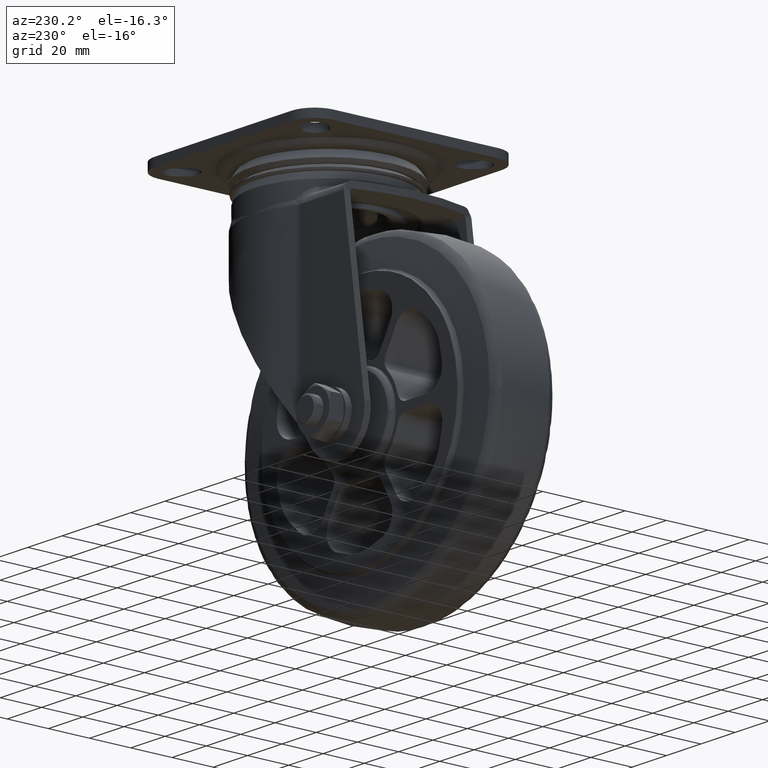
[diagram: clean part render]
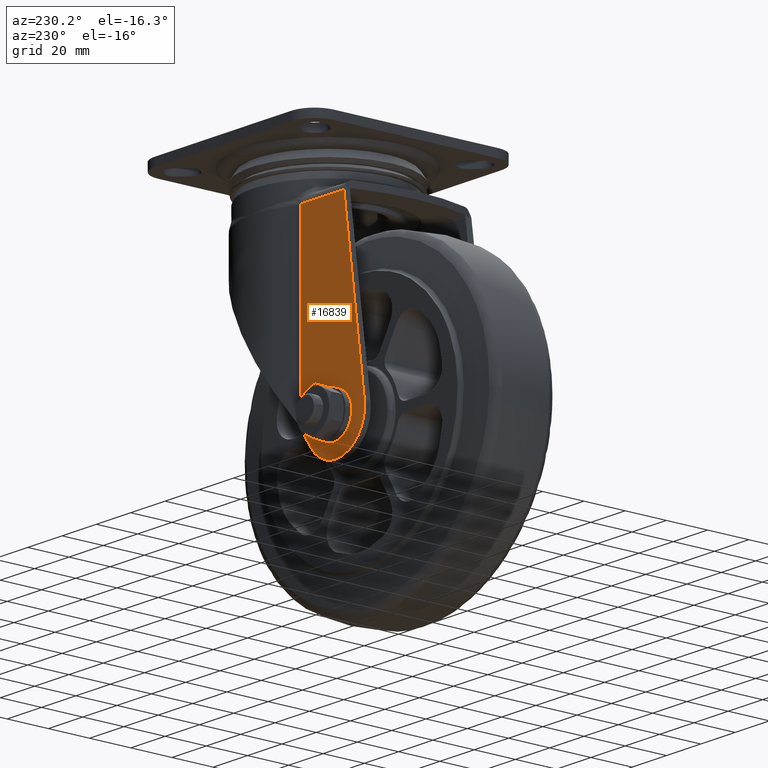
[diagram: same view with one face highlighted and labeled with its STEP entity id]
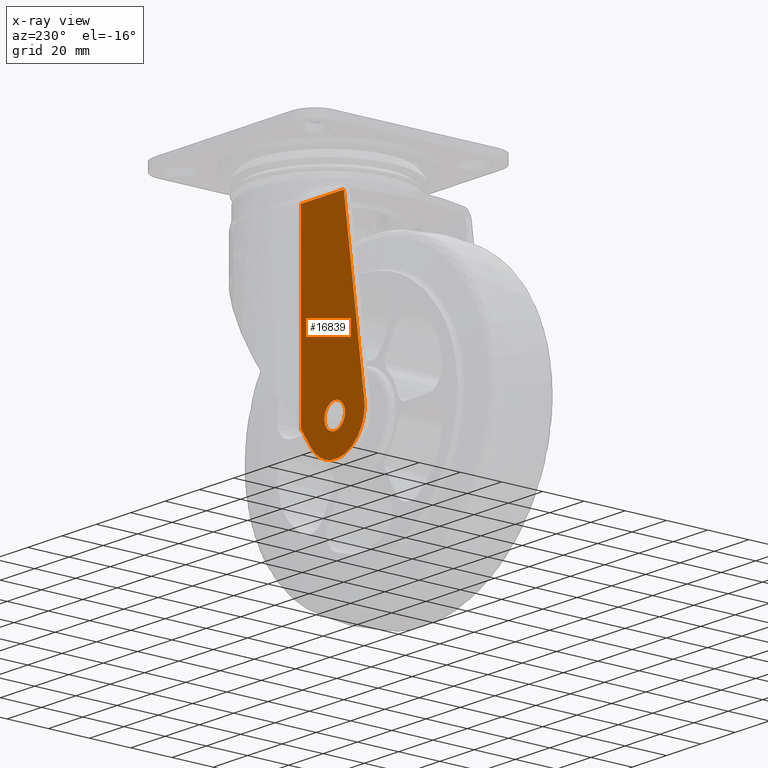
[diagram: x-ray of the same camera — body ghosted, the highlighted face saturated]
A machine part, auxiliary view. The second image highlights one B-rep face of the part: STEP entity #16839.
The next image is the same camera in x-ray: the body ghosted, the highlighted face saturated — about 0% of this face is hidden behind the body in this view.
In plain terms, the highlighted face is a freeform B-spline surface patch.
Its self-contained STEP definition (entity closure, byte-faithful):
#11979=CARTESIAN_POINT('',(-5.953597282907007,31.0,-0.744768012848497));
#11980=VERTEX_POINT('',#11979);
#11981=CARTESIAN_POINT('',(0.0,31.0,-6.0));
#11982=VERTEX_POINT('',#11981);
#11983=CARTESIAN_POINT('',(-5.953597282907007,31.000000000000004,-0.744768012848497));
#11984=CARTESIAN_POINT('',(-5.296191600238813,30.999999999999996,-6.0));
#11985=CARTESIAN_POINT('',(0.0,31.0,-6.0));
#11993=(BOUNDED_CURVE()B_SPLINE_CURVE(2,(#11983,#11984,#11985),.UNSPECIFIED.,.F.,.U.)B_SPLINE_CURVE_WITH_KNOTS((3,3),(0.271473928991636,0.500000000000000),.UNSPECIFIED.)CURVE()GEOMETRIC_REPRESENTATION_ITEM()RATIONAL_B_SPLINE_CURVE((0.954005430234093,0.732265053918275,1.0))REPRESENTATION_ITEM(''));
#11994=EDGE_CURVE('',#11980,#11982,#11993,.T.);
#12035=CARTESIAN_POINT('',(5.999771538377074,31.0,0.052359213901547));
#12036=VERTEX_POINT('',#12035);
#12042=CARTESIAN_POINT('',(0.0,31.0,-6.0));
#12043=CARTESIAN_POINT('',(6.0,31.000000000000007,-6.0));
#12044=CARTESIAN_POINT('',(6.0,31.0,0.0));
#12045=CARTESIAN_POINT('',(5.999999999999999,31.000000000000004,0.026180105835554));
#12046=CARTESIAN_POINT('',(5.999771538377074,30.999999999999996,0.052359213901547));
#12054=(BOUNDED_CURVE()B_SPLINE_CURVE(2,(#12042,#12043,#12044,#12045,#12046),.UNSPECIFIED.,.F.,.U.)B_SPLINE_CURVE_WITH_KNOTS((3,2,3),(0.500000000000000,0.750000000000000,0.751539894388495),.UNSPECIFIED.)CURVE()GEOMETRIC_REPRESENTATION_ITEM()RATIONAL_B_SPLINE_CURVE((1.0,0.707106781186548,1.0,0.998195901503684,0.996414027976574))REPRESENTATION_ITEM(''));
#12055=EDGE_CURVE('',#11982,#12036,#12054,.T.);
#12082=CARTESIAN_POINT('',(0.0,31.0,6.0));
#12083=VERTEX_POINT('',#12082);
#12084=CARTESIAN_POINT('',(0.0,31.0,6.0));
#12085=CARTESIAN_POINT('',(-6.0,31.000000000000007,6.0));
#12086=CARTESIAN_POINT('',(-6.0,31.0,0.0));
#12087=CARTESIAN_POINT('',(-6.000000000000001,31.000000000000004,-0.373829565574812));
#12088=CARTESIAN_POINT('',(-5.953597282907007,31.000000000000004,-0.744768012848497));
#12096=(BOUNDED_CURVE()B_SPLINE_CURVE(2,(#12084,#12085,#12086,#12087,#12088),.UNSPECIFIED.,.F.,.U.)B_SPLINE_CURVE_WITH_KNOTS((3,2,3),(0.0,0.250000000000000,0.271473928991636),.UNSPECIFIED.)CURVE()GEOMETRIC_REPRESENTATION_ITEM()RATIONAL_B_SPLINE_CURVE((1.0,0.707106781186548,1.0,0.974841727268273,0.954005430234093))REPRESENTATION_ITEM(''));
#12097=EDGE_CURVE('',#12083,#11980,#12096,.T.);
#12099=CARTESIAN_POINT('',(5.999771538377074,30.999999999999996,0.052359213901547));
#12100=CARTESIAN_POINT('',(5.947867261762962,31.000000000000011,6.000000000000001));
#12101=CARTESIAN_POINT('',(0.0,31.0,6.0));
#12109=(BOUNDED_CURVE()B_SPLINE_CURVE(2,(#12099,#12100,#12101),.UNSPECIFIED.,.F.,.U.)B_SPLINE_CURVE_WITH_KNOTS((3,3),(0.751539894388496,1.0),.UNSPECIFIED.)CURVE()GEOMETRIC_REPRESENTATION_ITEM()RATIONAL_B_SPLINE_CURVE((0.996414027976572,0.708910879682865,1.0))REPRESENTATION_ITEM(''));
#12110=EDGE_CURVE('',#12036,#12083,#12109,.T.);
#14707=CARTESIAN_POINT('',(19.713605374355399,31.0,86.649990000000003));
#14708=VERTEX_POINT('',#14707);
#14766=CARTESIAN_POINT('',(19.713605374355449,31.0,-0.793101679566810));
#14767=VERTEX_POINT('',#14766);
#14783=CARTESIAN_POINT('',(19.713605374355399,31.0,86.649990000000003));
#14784=CARTESIAN_POINT('',(19.713605374355449,31.0,-0.793101679566810));
#14785=QUASI_UNIFORM_CURVE('',1,(#14783,#14784),.UNSPECIFIED.,.F.,.U.);
#14786=EDGE_CURVE('',#14708,#14767,#14785,.T.);
#16580=CARTESIAN_POINT('',(-5.291698815796610,31.0,86.649990000000003));
#16581=VERTEX_POINT('',#16580);
#16582=CARTESIAN_POINT('',(-5.291698815796610,31.0,86.649990000000003));
#16583=CARTESIAN_POINT('',(19.713605374355399,31.0,86.649990000000003));
#16584=QUASI_UNIFORM_CURVE('',1,(#16582,#16583),.UNSPECIFIED.,.F.,.U.);
#16585=EDGE_CURVE('',#16581,#14708,#16584,.T.);
#16795=CARTESIAN_POINT('',(-19.241105476619239,31.0,-22.175159766853639));
#16796=CARTESIAN_POINT('',(-19.241105476619239,31.0,91.827199195738714));
#16797=CARTESIAN_POINT('',(21.566825794613791,31.0,-22.175159766853639));
#16798=CARTESIAN_POINT('',(21.566825794613791,31.0,91.827199195738714));
#16799=B_SPLINE_SURFACE_WITH_KNOTS('',1,1,((#16795,#16797),(#16796,#16798)),.UNSPECIFIED.,.F.,.F.,.U.,(2,2),(2,2),(0.0,114.002358962592400),(0.0,40.807931271233031),.UNSPECIFIED.);
#16800=ORIENTED_EDGE('',*,*,#16585,.T.);
#16801=ORIENTED_EDGE('',*,*,#14786,.T.);
#16802=CARTESIAN_POINT('',(13.587418191632301,31.0,-9.661906722576230));
#16803=VERTEX_POINT('',#16802);
#16804=CARTESIAN_POINT('',(19.713605374355449,31.0,-0.793101679566810));
#16805=CARTESIAN_POINT('',(13.587418191632301,31.0,-9.661906722576230));
#16806=QUASI_UNIFORM_CURVE('',1,(#16804,#16805),.UNSPECIFIED.,.F.,.U.);
#16807=EDGE_CURVE('',#14767,#16803,#16806,.T.);
#16808=ORIENTED_EDGE('',*,*,#16807,.T.);
#16809=CARTESIAN_POINT('',(-17.231863918942850,31.0,2.385034733064400));
#16810=VERTEX_POINT('',#16809);
#16811=CARTESIAN_POINT('',(13.587418191632301,31.0,-9.661906722576232));
#16812=CARTESIAN_POINT('',(5.941154174681030,31.000000000000007,-20.731308575193175));
#16813=CARTESIAN_POINT('',(-6.589094716428606,31.0,-15.833362728362200));
#16814=CARTESIAN_POINT('',(-19.119343607538244,31.000000000000007,-10.935416881531223));
#16815=CARTESIAN_POINT('',(-17.231863918942839,31.0,2.385034733064390));
#16823=(BOUNDED_CURVE()B_SPLINE_CURVE(2,(#16811,#16812,#16813,#16814,#16815),.UNSPECIFIED.,.F.,.U.)B_SPLINE_CURVE_WITH_KNOTS((3,2,3),(0.0,0.500000000000000,1.0),.UNSPECIFIED.)CURVE()GEOMETRIC_REPRESENTATION_ITEM()RATIONAL_B_SPLINE_CURVE((1.0,0.784154094843759,1.0,0.784154094843759,1.0))REPRESENTATION_ITEM(''));
#16824=EDGE_CURVE('',#16803,#16810,#16823,.T.);
#16825=ORIENTED_EDGE('',*,*,#16824,.T.);
#16826=CARTESIAN_POINT('',(-17.231863918942850,31.0,2.385034733064400));
#16827=CARTESIAN_POINT('',(-5.291698815796610,31.0,86.649990000000003));
#16828=QUASI_UNIFORM_CURVE('',1,(#16826,#16827),.UNSPECIFIED.,.F.,.U.);
#16829=EDGE_CURVE('',#16810,#16581,#16828,.T.);
#16830=ORIENTED_EDGE('',*,*,#16829,.T.);
#16831=EDGE_LOOP('',(#16800,#16801,#16808,#16825,#16830));
#16832=FACE_OUTER_BOUND('',#16831,.T.);
#16833=ORIENTED_EDGE('',*,*,#12055,.T.);
#16834=ORIENTED_EDGE('',*,*,#12110,.T.);
#16835=ORIENTED_EDGE('',*,*,#12097,.T.);
#16836=ORIENTED_EDGE('',*,*,#11994,.T.);
#16837=EDGE_LOOP('',(#16833,#16834,#16835,#16836));
#16838=FACE_BOUND('',#16837,.T.);
#16839=ADVANCED_FACE('',(#16832,#16838),#16799,.T.);